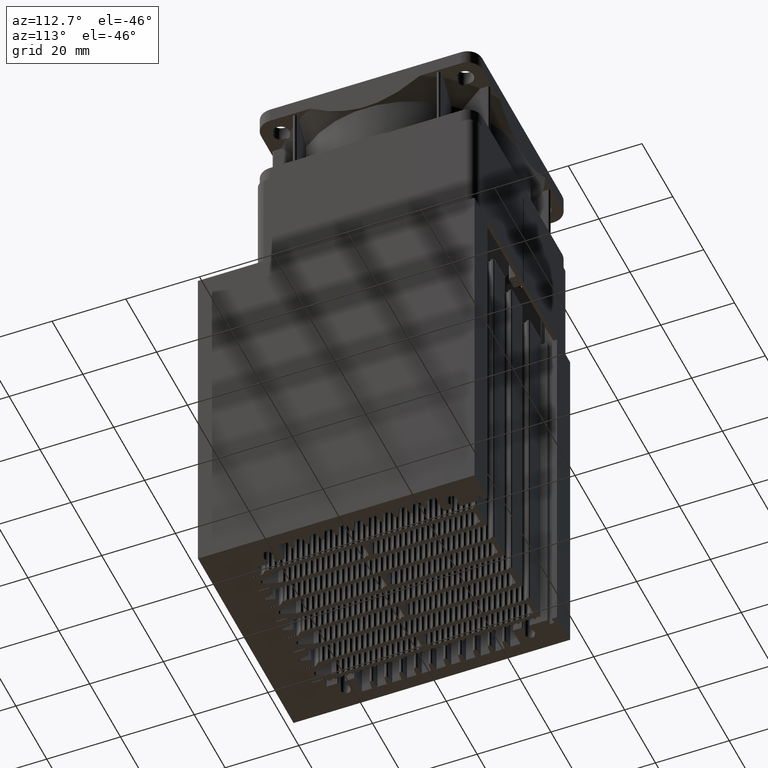
[diagram: clean part render]
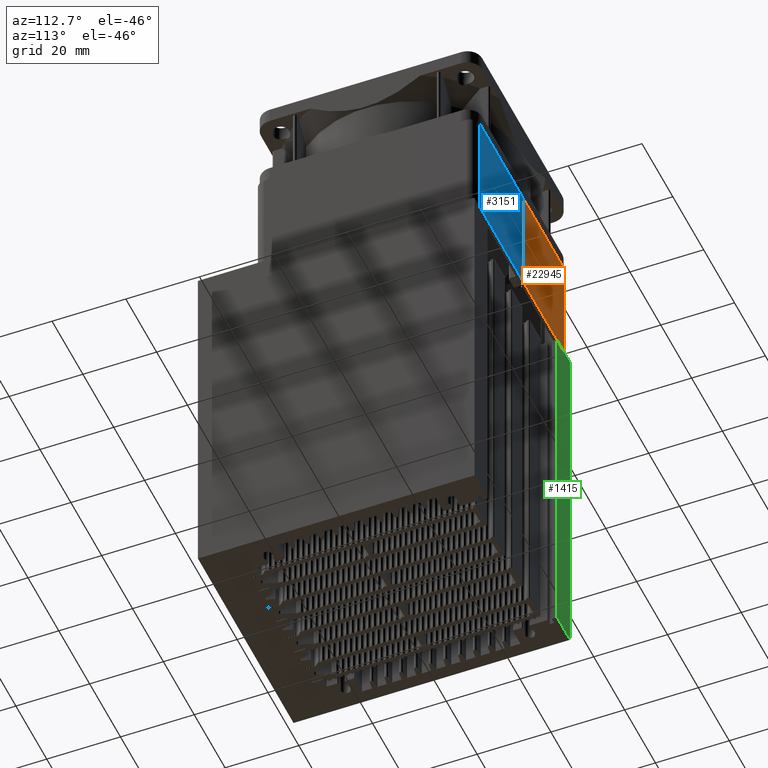
[diagram: same view with three faces highlighted in distinct colors, each labeled with its STEP entity id]
A machine part, auxiliary view with three faces highlighted in distinct colors.
Their STEP definitions:

[orange] entity #22945 — the highlighted planar face has unit normal (0, -1, 0).
#1348 = EDGE_CURVE ( 'NONE', #10787, #19811, #11410, .T. ) ;
#1826 = CARTESIAN_POINT ( 'NONE',  ( 29.99999999999997513, 12.85714285714282745, 30.00000000000000000 ) ) ;
#3499 = PLANE ( 'NONE',  #8588 ) ;
#3858 = CARTESIAN_POINT ( 'NONE',  ( 30.00000000000000000, -13.61344537815125477, 0.000000000000000000 ) ) ;
#5110 = ORIENTED_EDGE ( 'NONE', *, *, #30636, .T. ) ;
#5485 = ORIENTED_EDGE ( 'NONE', *, *, #15678, .F. ) ;
#6607 = CARTESIAN_POINT ( 'NONE',  ( 29.99999999999997513, 12.85714285714282745, 30.00000000000000000 ) ) ;
#8221 = DIRECTION ( 'NONE',  ( -7.864079757761631662E-16, 1.000000000000000000, -1.567082167785077672E-30 ) ) ;
#8588 = AXIS2_PLACEMENT_3D ( 'NONE', #13318, #23662, #13815 ) ;
#8892 = LINE ( 'NONE', #31308, #15185 ) ;
#9611 = DIRECTION ( 'NONE',  ( -7.864079757761631662E-16, 1.000000000000000000, -1.567082167785077672E-30 ) ) ;
#10787 = VERTEX_POINT ( 'NONE', #1826 ) ;
#11410 = LINE ( 'NONE', #6607, #11476 ) ;
#11476 = VECTOR ( 'NONE', #28534, 1000.000000000000000 ) ;
#11692 = LINE ( 'NONE', #21539, #26374 ) ;
#13052 = VERTEX_POINT ( 'NONE', #29816 ) ;
#13201 = LINE ( 'NONE', #3858, #18780 ) ;
#13318 = CARTESIAN_POINT ( 'NONE',  ( 30.00000000000000000, -13.61344537815125477, 30.00000000000000000 ) ) ;
#13429 = EDGE_LOOP ( 'NONE', ( #5110, #21657, #5485, #25044 ) ) ;
#13815 = DIRECTION ( 'NONE',  ( 7.864079757761631662E-16, -1.000000000000000000, 1.567082167785077672E-30 ) ) ;
#15185 = VECTOR ( 'NONE', #19045, 1000.000000000000000 ) ;
#15678 = EDGE_CURVE ( 'NONE', #13052, #10787, #11692, .T. ) ;
#17465 = CARTESIAN_POINT ( 'NONE',  ( 29.99999999999997513, 12.85714285714282745, 0.000000000000000000 ) ) ;
#18780 = VECTOR ( 'NONE', #8221, 1000.000000000000000 ) ;
#19045 = DIRECTION ( 'NONE',  ( 3.363116314379565451E-44, 1.567082167785079599E-30, -1.000000000000000000 ) ) ;
#19811 = VERTEX_POINT ( 'NONE', #17465 ) ;
#21539 = CARTESIAN_POINT ( 'NONE',  ( 30.00000000000000000, -13.61344537815125477, 30.00000000000000000 ) ) ;
#21657 = ORIENTED_EDGE ( 'NONE', *, *, #1348, .F. ) ;
#22096 = EDGE_CURVE ( 'NONE', #13052, #29874, #8892, .T. ) ;
#22945 = ADVANCED_FACE ( 'NONE', ( #25607 ), #3499, .F. ) ;
#23294 = CARTESIAN_POINT ( 'NONE',  ( 29.99999999999999289, -13.61344537815125477, 0.000000000000000000 ) ) ;
#23662 = DIRECTION ( 'NONE',  ( -1.000000000000000000, -7.864079757761631662E-16, 3.363116314379563957E-44 ) ) ;
#25044 = ORIENTED_EDGE ( 'NONE', *, *, #22096, .T. ) ;
#25607 = FACE_OUTER_BOUND ( 'NONE', #13429, .T. ) ;
#26374 = VECTOR ( 'NONE', #9611, 1000.000000000000000 ) ;
#28534 = DIRECTION ( 'NONE',  ( 3.363116314379565451E-44, 1.567082167785079599E-30, -1.000000000000000000 ) ) ;
#29816 = CARTESIAN_POINT ( 'NONE',  ( 29.99999999999999289, -13.61344537815125477, 30.00000000000000000 ) ) ;
#29874 = VERTEX_POINT ( 'NONE', #23294 ) ;
#30636 = EDGE_CURVE ( 'NONE', #29874, #19811, #13201, .T. ) ;
#31308 = CARTESIAN_POINT ( 'NONE',  ( 29.99999999999999289, -13.61344537815125477, 30.00000000000000000 ) ) ;

[blue] entity #3151 — the highlighted planar face has unit normal (0, -1, 0).
#249 = VECTOR ( 'NONE', #8034, 1000.000000000000000 ) ;
#630 = DIRECTION ( 'NONE',  ( 3.363116314379565451E-44, 1.567082167785079599E-30, -1.000000000000000000 ) ) ;
#3151 = ADVANCED_FACE ( 'NONE', ( #16624 ), #11777, .F. ) ;
#3999 = ORIENTED_EDGE ( 'NONE', *, *, #8120, .F. ) ;
#4265 = VERTEX_POINT ( 'NONE', #19210 ) ;
#8034 = DIRECTION ( 'NONE',  ( 9.466330862652141665E-30, -1.000000000000000000, 1.567082167785077672E-30 ) ) ;
#8120 = EDGE_CURVE ( 'NONE', #4265, #8497, #18501, .T. ) ;
#8497 = VERTEX_POINT ( 'NONE', #10567 ) ;
#9257 = CARTESIAN_POINT ( 'NONE',  ( -29.99999999999998579, -15.12605042016806145, 0.000000000000000000 ) ) ;
#10567 = CARTESIAN_POINT ( 'NONE',  ( -29.99999999999998579, -15.12605042016806145, 30.00000000000000000 ) ) ;
#10759 = CARTESIAN_POINT ( 'NONE',  ( -29.99999999999998579, -15.12605042016806145, 30.00000000000000000 ) ) ;
#10913 = VERTEX_POINT ( 'NONE', #9257 ) ;
#11088 = VECTOR ( 'NONE', #13014, 1000.000000000000000 ) ;
#11362 = CARTESIAN_POINT ( 'NONE',  ( -30.00000000000000000, 12.85714285714283811, 0.000000000000000000 ) ) ;
#11777 = PLANE ( 'NONE',  #28800 ) ;
#12377 = LINE ( 'NONE', #27392, #249 ) ;
#12559 = DIRECTION ( 'NONE',  ( 3.363116314379565451E-44, 1.567082167785079599E-30, -1.000000000000000000 ) ) ;
#13014 = DIRECTION ( 'NONE',  ( 9.466330862652141665E-30, -1.000000000000000000, 1.567082167785077672E-30 ) ) ;
#13053 = EDGE_CURVE ( 'NONE', #28431, #10913, #12377, .T. ) ;
#15244 = VECTOR ( 'NONE', #630, 1000.000000000000000 ) ;
#15406 = ORIENTED_EDGE ( 'NONE', *, *, #21089, .T. ) ;
#16624 = FACE_OUTER_BOUND ( 'NONE', #20063, .T. ) ;
#17016 = VECTOR ( 'NONE', #17711, 1000.000000000000000 ) ;
#17711 = DIRECTION ( 'NONE',  ( 3.363116314379565451E-44, 1.567082167785079599E-30, -1.000000000000000000 ) ) ;
#17723 = LINE ( 'NONE', #20475, #15244 ) ;
#18501 = LINE ( 'NONE', #22866, #11088 ) ;
#19205 = CARTESIAN_POINT ( 'NONE',  ( -30.00000000000000000, 12.85714285714283811, 30.00000000000000000 ) ) ;
#19210 = CARTESIAN_POINT ( 'NONE',  ( -30.00000000000000000, 12.85714285714283811, 30.00000000000000000 ) ) ;
#20063 = EDGE_LOOP ( 'NONE', ( #22233, #27886, #3999, #15406 ) ) ;
#20475 = CARTESIAN_POINT ( 'NONE',  ( -30.00000000000000000, 12.85714285714283811, 30.00000000000000000 ) ) ;
#20612 = LINE ( 'NONE', #10759, #17016 ) ;
#21089 = EDGE_CURVE ( 'NONE', #4265, #28431, #17723, .T. ) ;
#22233 = ORIENTED_EDGE ( 'NONE', *, *, #13053, .T. ) ;
#22866 = CARTESIAN_POINT ( 'NONE',  ( -30.00000000000000000, 12.85714285714283811, 30.00000000000000000 ) ) ;
#26652 = EDGE_CURVE ( 'NONE', #8497, #10913, #20612, .T. ) ;
#27392 = CARTESIAN_POINT ( 'NONE',  ( -30.00000000000000000, 12.85714285714283811, 0.000000000000000000 ) ) ;
#27886 = ORIENTED_EDGE ( 'NONE', *, *, #26652, .F. ) ;
#28431 = VERTEX_POINT ( 'NONE', #11362 ) ;
#28800 = AXIS2_PLACEMENT_3D ( 'NONE', #19205, #29522, #12559 ) ;
#29522 = DIRECTION ( 'NONE',  ( 1.000000000000000000, -9.466330862652141665E-30, 3.363116314379563957E-44 ) ) ;

[green] entity #1415 — the highlighted planar face has unit normal (0, -1, 0).
#580 = ORIENTED_EDGE ( 'NONE', *, *, #1571, .T. ) ;
#1415 = ADVANCED_FACE ( 'NONE', ( #11903 ), #21592, .F. ) ;
#1571 = EDGE_CURVE ( 'NONE', #2187, #25388, #14725, .T. ) ;
#1779 = EDGE_CURVE ( 'NONE', #25388, #23272, #13378, .T. ) ;
#2125 = VERTEX_POINT ( 'NONE', #25595 ) ;
#2187 = VERTEX_POINT ( 'NONE', #10734 ) ;
#4196 = EDGE_CURVE ( 'NONE', #2187, #2125, #25992, .T. ) ;
#4507 = DIRECTION ( 'NONE',  ( 0.000000000000000000, -1.000000000000000000, 0.000000000000000000 ) ) ;
#6010 = DIRECTION ( 'NONE',  ( -1.000000000000000000, 0.000000000000000000, 0.000000000000000000 ) ) ;
#6153 = CARTESIAN_POINT ( 'NONE',  ( 0.000000000000000000, 37.49999999999986500, 0.000000000000000000 ) ) ;
#7632 = DIRECTION ( 'NONE',  ( -0.000000000000000000, -0.000000000000000000, -1.000000000000000000 ) ) ;
#8082 = EDGE_LOOP ( 'NONE', ( #14256, #17506, #13550, #580 ) ) ;
#8285 = VECTOR ( 'NONE', #13542, 1000.000000000000000 ) ;
#8459 = VECTOR ( 'NONE', #18730, 1000.000000000000000 ) ;
#9338 = CARTESIAN_POINT ( 'NONE',  ( 0.000000000000000000, 37.49999999999986500, 100.0000000000000000 ) ) ;
#10734 = CARTESIAN_POINT ( 'NONE',  ( -22.71033882686146654, 37.49999999999986500, 100.0000000000000000 ) ) ;
#10815 = CARTESIAN_POINT ( 'NONE',  ( 0.000000000000000000, 37.49999999999986500, 100.0000000000000000 ) ) ;
#10974 = CARTESIAN_POINT ( 'NONE',  ( -31.21033882686147365, 37.49999999999986500, 100.0000000000000000 ) ) ;
#11903 = FACE_OUTER_BOUND ( 'NONE', #8082, .T. ) ;
#12135 = CARTESIAN_POINT ( 'NONE',  ( -22.71033882686146654, 37.49999999999986500, 100.0000000000000000 ) ) ;
#12342 = CARTESIAN_POINT ( 'NONE',  ( -31.21033882686147365, 37.49999999999986500, 0.000000000000000000 ) ) ;
#12427 = EDGE_CURVE ( 'NONE', #2125, #23272, #23583, .T. ) ;
#12503 = CARTESIAN_POINT ( 'NONE',  ( -22.71033882686146654, 37.49999999999986500, 0.000000000000000000 ) ) ;
#13378 = LINE ( 'NONE', #6153, #8285 ) ;
#13542 = DIRECTION ( 'NONE',  ( -1.000000000000000000, 0.000000000000000000, 0.000000000000000000 ) ) ;
#13550 = ORIENTED_EDGE ( 'NONE', *, *, #4196, .F. ) ;
#14256 = ORIENTED_EDGE ( 'NONE', *, *, #1779, .T. ) ;
#14725 = LINE ( 'NONE', #12135, #31059 ) ;
#17506 = ORIENTED_EDGE ( 'NONE', *, *, #12427, .F. ) ;
#18730 = DIRECTION ( 'NONE',  ( -0.000000000000000000, -0.000000000000000000, -1.000000000000000000 ) ) ;
#21128 = VECTOR ( 'NONE', #6010, 1000.000000000000000 ) ;
#21592 = PLANE ( 'NONE',  #23354 ) ;
#23272 = VERTEX_POINT ( 'NONE', #12342 ) ;
#23354 = AXIS2_PLACEMENT_3D ( 'NONE', #9338, #4507, #29013 ) ;
#23583 = LINE ( 'NONE', #10974, #8459 ) ;
#25388 = VERTEX_POINT ( 'NONE', #12503 ) ;
#25595 = CARTESIAN_POINT ( 'NONE',  ( -31.21033882686147365, 37.49999999999986500, 100.0000000000000000 ) ) ;
#25992 = LINE ( 'NONE', #10815, #21128 ) ;
#29013 = DIRECTION ( 'NONE',  ( 0.000000000000000000, -0.000000000000000000, -1.000000000000000000 ) ) ;
#31059 = VECTOR ( 'NONE', #7632, 1000.000000000000000 ) ;